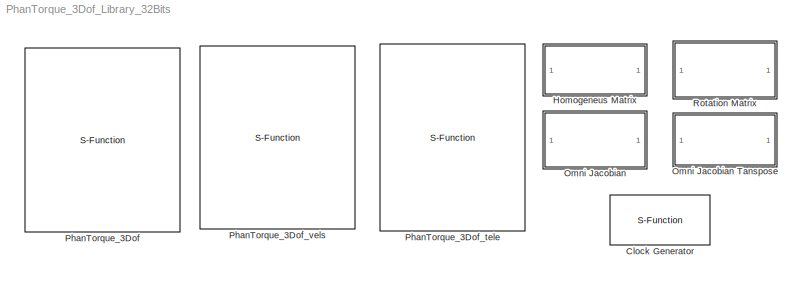
MODEL PhanTorque_3Dof_Library_32Bits
KIND library
BLOCK [S-Function] Clock Generator
  EnableBusSupport = off
  FunctionName = PHANToM_RealTime
  MaskDisplay = text(0.1, 0.65, '\\bf\\fontsize{16}CPU clock', 'texmode', 'on', 'verticalAlignment', 'top', 'horizontalAlignment', 'left')
  MaskIconFrame = on
  MaskIconOpaque = on
  MaskIconRotate = none
  MaskIconUnits = normalized
  MaskPortRotate = default
  Ports = [0, 1]
  SID = 33
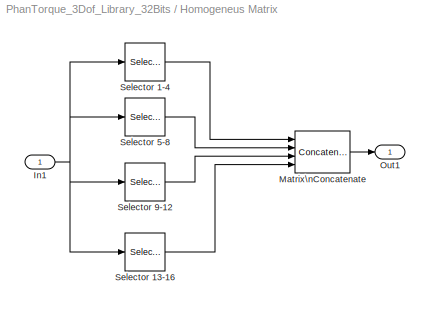
BLOCK [SubSystem] Homogeneus Matrix
  FunctionWithSeparateData = off
  MaskDisplay = text(0.5, 0.65, '\\bf\\fontsize{16}H', 'texmode', 'on', 'verticalAlignment', 'top', 'horizontalAlignment', 'left')\nport_label('input', 1, 'h(16x1)')\nport_label('output', 1, 'H(4x4)')
  MaskHideContents = off
  MaskIconFrame = on
  MaskIconOpaque = on
  MaskIconRotate = none
  MaskIconUnits = normalized
  MaskPortRotate = default
  MinAlgLoopOccurrences = off
  Opaque = off
  Ports = [1, 1]
  PropExecContextOutsideSubsystem = off
  RTWSystemCode = Auto
  RequestExecContextInheritance = off
  SID = 18
BLOCK [Inport] Homogeneus Matrix/In1
  IconDisplay = Port number
  SID = 19
BLOCK [Concatenate] Homogeneus Matrix/Matrix\nConcatenate
  ConcatenateDimension = 2
  Mode = Multidimensional array
  NumInputs = 4
  Ports = [4, 1]
  SID = 20
BLOCK [Outport] Homogeneus Matrix/Out1
  IconDisplay = Port number
  SID = 25
BLOCK [Selector] Homogeneus Matrix/Selector 1-4
  IndexOptions = Index vector (dialog)
  Indices = [1 2 3 4]
  InputPortWidth = 16
  OutputSizes = 1
  Ports = [1, 1]
  SID = 21
BLOCK [Selector] Homogeneus Matrix/Selector 13-16
  IndexOptions = Index vector (dialog)
  Indices = [13 14 15 16]
  InputPortWidth = 16
  OutputSizes = 1
  Ports = [1, 1]
  SID = 22
BLOCK [Selector] Homogeneus Matrix/Selector 5-8
  IndexOptions = Index vector (dialog)
  Indices = [5 6 7 8]
  InputPortWidth = 16
  OutputSizes = 1
  Ports = [1, 1]
  SID = 23
BLOCK [Selector] Homogeneus Matrix/Selector 9-12
  IndexOptions = Index vector (dialog)
  Indices = [9 10 11 12]
  InputPortWidth = 16
  OutputSizes = 1
  Ports = [1, 1]
  SID = 24
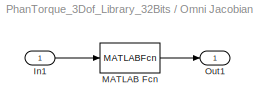
BLOCK [SubSystem] Omni Jacobian
  FunctionWithSeparateData = off
  MaskDisplay = text(0.4, 0.7, '\\bf\\fontsize{16}J', 'texmode', 'on', 'verticalAlignment', 'top', 'horizontalAlignment', 'left')\nport_label('input', 1, 'q')\nport_label('output', 1, 'J')
  MaskHideContents = off
  MaskIconFrame = on
  MaskIconOpaque = on
  MaskIconRotate = none
  MaskIconUnits = normalized
  MaskPortRotate = default
  MinAlgLoopOccurrences = off
  Opaque = off
  Ports = [1, 1]
  PropExecContextOutsideSubsystem = off
  RTWSystemCode = Auto
  RequestExecContextInheritance = off
  SID = 14
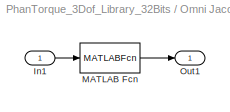
BLOCK [SubSystem] Omni Jacobian Tanspose
  FunctionWithSeparateData = off
  MaskDisplay = text(0.4, 0.7, '\\bf\\fontsize{16}JT', 'texmode', 'on', 'verticalAlignment', 'top', 'horizontalAlignment', 'left')\nport_label('input', 1, 'q')\nport_label('output', 1, 'JTrans')
  MaskHideContents = off
  MaskIconFrame = on
  MaskIconOpaque = on
  MaskIconRotate = none
  MaskIconUnits = normalized
  MaskPortRotate = default
  MinAlgLoopOccurrences = off
  Opaque = off
  Ports = [1, 1]
  PropExecContextOutsideSubsystem = off
  RTWSystemCode = Auto
  RequestExecContextInheritance = off
  SID = 10
BLOCK [Inport] Omni Jacobian Tanspose/In1
  IconDisplay = Port number
  PortDimensions = 3
  SID = 11
BLOCK [MATLABFcn] Omni Jacobian Tanspose/MATLAB Fcn
  MATLABFcn = Omni_Jacobian_Transpose(u)
  Output1D = off
  OutputDimensions = [3 3]
  Ports = [1, 1]
  SID = 7
BLOCK [Outport] Omni Jacobian Tanspose/Out1
  IconDisplay = Port number
  PortDimensions = [3 3]
  SID = 12
BLOCK [Inport] Omni Jacobian/In1
  IconDisplay = Port number
  PortDimensions = 3
  SID = 15
BLOCK [MATLABFcn] Omni Jacobian/MATLAB Fcn
  MATLABFcn = Omni_Jacobian(u)
  Output1D = off
  OutputDimensions = [3 3]
  Ports = [1, 1]
  SID = 16
BLOCK [Outport] Omni Jacobian/Out1
  IconDisplay = Port number
  PortDimensions = [3 3]
  SID = 17
BLOCK [S-Function] PhanTorque_3Dof
  EnableBusSupport = off
  FunctionName = PhanTorque_3Dof
  MaskDescription = Input:\ntau--> Control Torques (3x1)\n\nOutputs:\nq-->Joints Position (3x1)\np-->Cartesian Position (x,y,z  3x1)\nh-->Homogeneus Transformation Matrix (vector form, 16x1)\n\nS-Function Parameter:\nHaptic Name--> Name as appear on the \"PHANToM Test\" program.\nex: 'Default PHANToM'
  MaskDisplay = image(imread('omni.png'))\nport_label('input',1,'tau');\nport_label('output',1,'q');\nport_label('output',2,'p');\nport_label('output',3,'h');
  MaskEnableString = on
  MaskIconFrame = on
  MaskIconOpaque = on
  MaskIconRotate = none
  MaskIconUnits = autoscale
  MaskPortRotate = default
  MaskPromptString = Haptic Name
  MaskStyleString = edit
  MaskToolTipString = on
  MaskTunableValueString = on
  MaskValueString = 'Default PHANToM'
  MaskVariables = Haptic_Name=@1;
  MaskVisibilityString = on
  Parameters = Haptic_Name
  Ports = [1, 3]
  SID = 1
BLOCK [S-Function] PhanTorque_3Dof_tele
  EnableBusSupport = off
  FunctionName = PhanTorque_3Dof_tele
  MaskCallbackString = |
  MaskDescription = Input:\ntau_l-->Local Control Torques (3x1)\ntau_r-->Remote Control Torques (3x1)\n\nOutputs:\nq_l-->Local Joints Position (3x1)\np_l-->Local Cartesian Position (x_l,y_l,_z_l, 3x1)\nq_r-->Remote Joints Position (3x1)\np_r-->Remote Cartesian Position (x_r,y_r,z_r, 3x1)\n\nS-Function Parameters:\nHaptics Names--> Names as appear on the \"PHANToM Test\" program. \nex: 'Default PHANToM'
  MaskDisplay = image(imread('2omni.png'))\nport_label('input',1,'tau_l');\nport_label('input',2,'tau_r');\nport_label('output',1,'q_l');\nport_label('output',2,'p_l');\nport_label('output',3,'q_r');\nport_label('output',4,'p_r');
  MaskEnableString = on,on
  MaskIconFrame = on
  MaskIconOpaque = on
  MaskIconRotate = none
  MaskIconUnits = autoscale
  MaskPortRotate = default
  MaskPromptString = Local Haptic Name|Remote Haptic Name
  MaskStyleString = edit,edit
  MaskToolTipString = on,on
  MaskTunableValueString = on,on
  MaskValueString = 'Default PHANToM1'|'Default PHANToM2'
  MaskVariables = Haptic1_Name=@1;Haptic2_Name=@2;
  MaskVisibilityString = on,on
  Parameters = Haptic1_Name,Haptic2_Name
  Ports = [2, 4]
  SID = 36
BLOCK [S-Function] PhanTorque_3Dof_vels
  EnableBusSupport = off
  FunctionName = PhanTorque_3Dof_vels
  MaskDescription = Input:\ntau--> Control Torques (3x1)\n\nOutputs:\nq-->Joints Position (3x1)\np-->Cartesian Position (x,y,z 3x1)\nv-->Linear Velocity (vx,vy,vz 3x1)\nh-->Homogeneus Transformation Matrix (vector form, 16x1)\n\nS-Function Parameter:\nHaptic Name--> Name as appear on the \"PHANToM Test\" program.\nex: 'Default PHANToM'
  MaskDisplay = image(imread('omni.png'))\nport_label('input',1,'tau');\nport_label('output',1,'q');\nport_label('output',2,'p');\nport_label('output',3,'v');\nport_label('output',4,'h');\n\n
  MaskEnableString = on
  MaskIconFrame = on
  MaskIconOpaque = on
  MaskIconRotate = none
  MaskIconUnits = autoscale
  MaskPortRotate = default
  MaskPromptString = Haptic Name
  MaskStyleString = edit
  MaskToolTipString = on
  MaskTunableValueString = on
  MaskValueString = 'Default PHANToM'
  MaskVariables = Haptic_Name=@1;
  MaskVisibilityString = on
  Parameters = Haptic_Name
  Ports = [1, 4]
  SID = 43
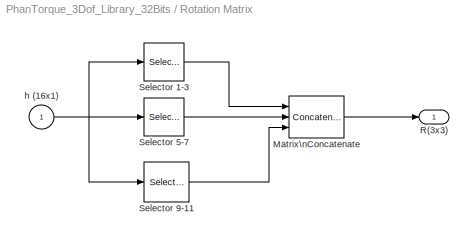
BLOCK [SubSystem] Rotation Matrix
  FunctionWithSeparateData = off
  MaskDisplay = text(0.5, 0.65, '\\bf\\fontsize{16}R', 'texmode', 'on', 'verticalAlignment', 'top', 'horizontalAlignment', 'left')\nport_label('input', 1, 'h(16x1)')\nport_label('output', 1, 'R(3x3)')
  MaskHideContents = off
  MaskIconFrame = on
  MaskIconOpaque = on
  MaskIconRotate = none
  MaskIconUnits = normalized
  MaskPortRotate = default
  MinAlgLoopOccurrences = off
  Opaque = off
  Ports = [1, 1]
  PropExecContextOutsideSubsystem = off
  RTWSystemCode = Auto
  RequestExecContextInheritance = off
  SID = 26
BLOCK [Concatenate] Rotation Matrix/Matrix\nConcatenate
  ConcatenateDimension = 2
  Mode = Multidimensional array
  NumInputs = 3
  Ports = [3, 1]
  SID = 28
BLOCK [Outport] Rotation Matrix/R(3x3)
  IconDisplay = Port number
  PortDimensions = [3 3]
  SID = 32
BLOCK [Selector] Rotation Matrix/Selector 1-3
  IndexOptions = Index vector (dialog)
  Indices = [1 2 3]
  InputPortWidth = 16
  OutputSizes = 1
  Ports = [1, 1]
  SID = 29
BLOCK [Selector] Rotation Matrix/Selector 5-7
  IndexOptions = Index vector (dialog)
  Indices = [5 6 7]
  InputPortWidth = 16
  OutputSizes = 1
  Ports = [1, 1]
  SID = 30
BLOCK [Selector] Rotation Matrix/Selector 9-11
  IndexOptions = Index vector (dialog)
  Indices = [9 10 11]
  InputPortWidth = 16
  OutputSizes = 1
  Ports = [1, 1]
  SID = 31
BLOCK [Inport] Rotation Matrix/h (16x1)
  IconDisplay = Port number
  PortDimensions = 16
  SID = 27
NET Homogeneus Matrix/In1:1 -> Homogeneus Matrix/Selector 1-4:1, Homogeneus Matrix/Selector 13-16:1, Homogeneus Matrix/Selector 5-8:1, Homogeneus Matrix/Selector 9-12:1
LINE Homogeneus Matrix/Matrix\nConcatenate:1 -> Homogeneus Matrix/Out1:1
LINE Homogeneus Matrix/Selector 1-4:1 -> Homogeneus Matrix/Matrix\nConcatenate:1
LINE Homogeneus Matrix/Selector 13-16:1 -> Homogeneus Matrix/Matrix\nConcatenate:4
LINE Homogeneus Matrix/Selector 5-8:1 -> Homogeneus Matrix/Matrix\nConcatenate:2
LINE Homogeneus Matrix/Selector 9-12:1 -> Homogeneus Matrix/Matrix\nConcatenate:3
LINE Omni Jacobian Tanspose/In1:1 -> Omni Jacobian Tanspose/MATLAB Fcn:1
LINE Omni Jacobian Tanspose/MATLAB Fcn:1 -> Omni Jacobian Tanspose/Out1:1
LINE Omni Jacobian/In1:1 -> Omni Jacobian/MATLAB Fcn:1
LINE Omni Jacobian/MATLAB Fcn:1 -> Omni Jacobian/Out1:1
LINE Rotation Matrix/Matrix\nConcatenate:1 -> Rotation Matrix/R(3x3):1
LINE Rotation Matrix/Selector 1-3:1 -> Rotation Matrix/Matrix\nConcatenate:1
LINE Rotation Matrix/Selector 5-7:1 -> Rotation Matrix/Matrix\nConcatenate:2
LINE Rotation Matrix/Selector 9-11:1 -> Rotation Matrix/Matrix\nConcatenate:3
NET Rotation Matrix/h (16x1):1 -> Rotation Matrix/Selector 1-3:1, Rotation Matrix/Selector 5-7:1, Rotation Matrix/Selector 9-11:1
note: NET lines group one-source signal fan-out (src -> all destinations, sorted); 1:1 wires keep LINE
